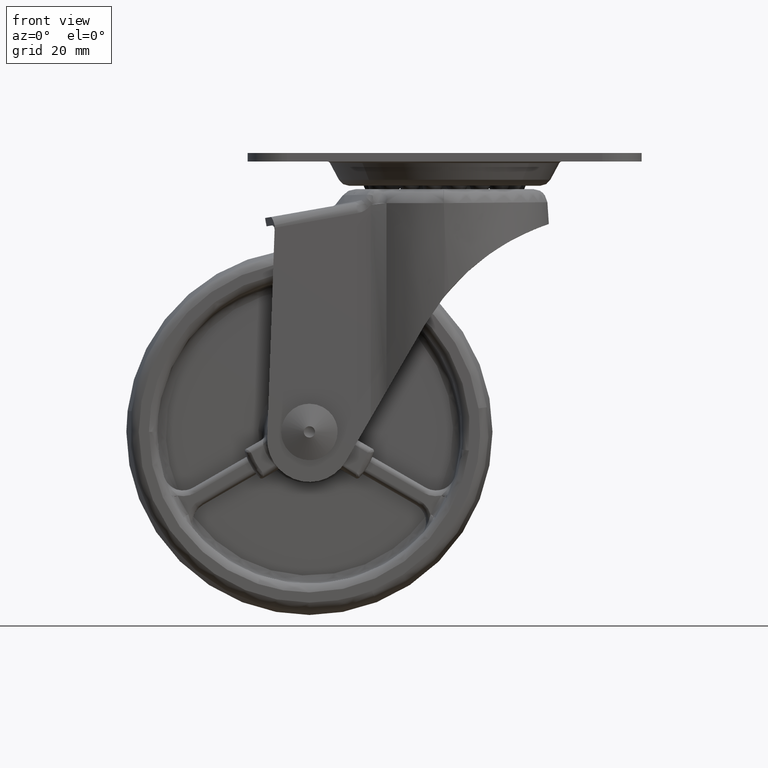
[diagram: clean part render]
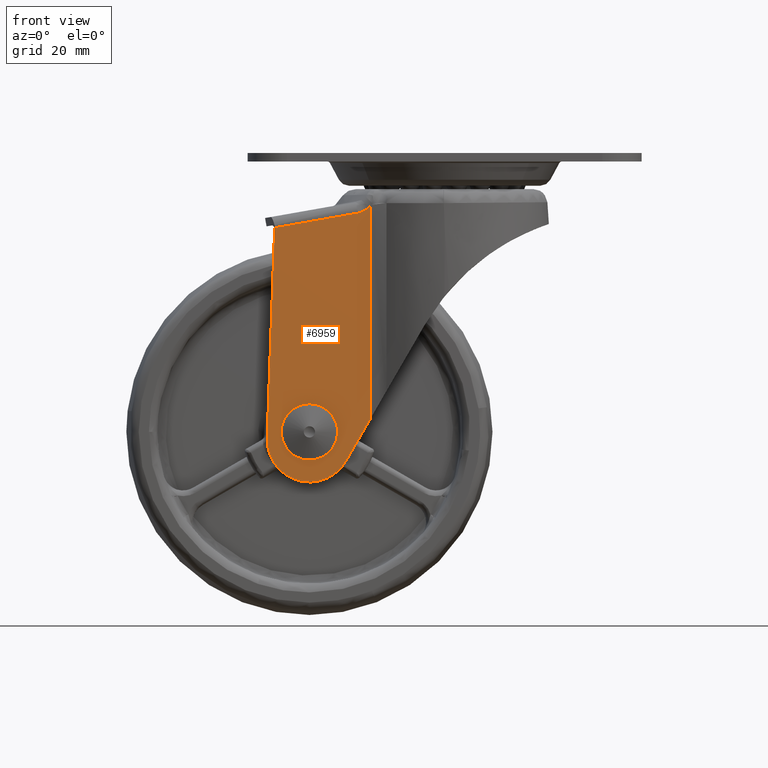
[diagram: same view with one face highlighted and labeled with its STEP entity id]
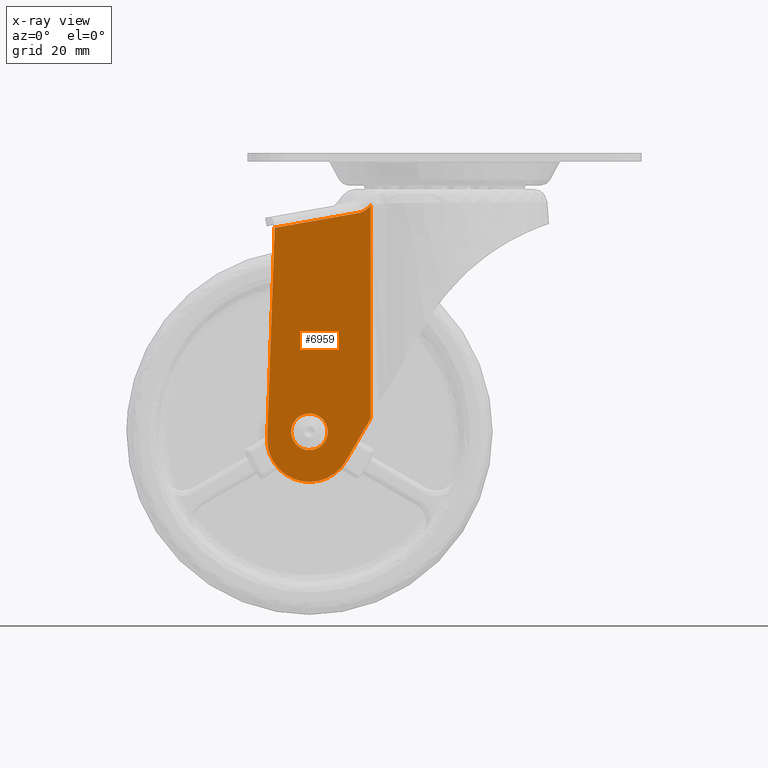
[diagram: x-ray of the same camera — body ghosted, the highlighted face saturated]
A machine part, front view. The second image highlights one B-rep face of the part: STEP entity #6959.
The next image is the same camera in x-ray: the body ghosted, the highlighted face saturated — about 0% of this face is hidden behind the body in this view.
In plain terms, the highlighted face is a freeform B-spline surface patch.
Its self-contained STEP definition (entity closure, byte-faithful):
#962=CARTESIAN_POINT('',(-26.481556285255721,-14.500014999999980,-50.098657888461673));
#963=VERTEX_POINT('',#962);
#969=CARTESIAN_POINT('',(-24.0,-14.500014999999980,-51.249996000000003));
#970=VERTEX_POINT('',#969);
#971=CARTESIAN_POINT('',(-26.481556285255721,-14.500014999999980,-50.098657888461673));
#972=CARTESIAN_POINT('',(-26.196994702160229,-14.500015000000010,-50.435937924643142));
#973=CARTESIAN_POINT('',(-25.641381200740629,-14.500014999999960,-50.870703685043850));
#974=CARTESIAN_POINT('',(-24.749986543510339,-14.500014999999980,-51.192000824857068));
#975=CARTESIAN_POINT('',(-24.250010752007100,-14.500014999999969,-51.250047392190893));
#976=CARTESIAN_POINT('',(-24.0,-14.500014999999980,-51.249996000000003));
#977=B_SPLINE_CURVE_WITH_KNOTS('',3,(#971,#972,#973,#974,#975,#976),.UNSPECIFIED.,.F.,.U.,(4,1,1,4),(0.000000054424649,1.323581554199689,2.073600947817505,2.823627261542827),.UNSPECIFIED.);
#978=EDGE_CURVE('',#963,#970,#977,.T.);
#980=CARTESIAN_POINT('',(-20.750000000000661,-14.500014999999980,-47.999993928805957));
#981=VERTEX_POINT('',#980);
#982=CARTESIAN_POINT('',(-24.0,-14.500014999999980,-51.249996000000003));
#983=CARTESIAN_POINT('',(-23.654320758988710,-14.500015000000010,-51.250179105467197));
#984=CARTESIAN_POINT('',(-23.096070554655778,-14.500014999999930,-51.160054004434500));
#985=CARTESIAN_POINT('',(-22.436602506146549,-14.500015000000030,-50.867636830171840));
#986=CARTESIAN_POINT('',(-21.948912348024301,-14.500014999999930,-50.541772903984423));
#987=CARTESIAN_POINT('',(-21.484482486210350,-14.500015000000079,-50.099670013342639));
#988=CARTESIAN_POINT('',(-21.052774071394051,-14.500014999999820,-49.453728094915192));
#989=CARTESIAN_POINT('',(-20.799715856046799,-14.500015000000220,-48.717896996056268));
#990=CARTESIAN_POINT('',(-20.749982138409969,-14.500014999999760,-48.212695492317003));
#991=CARTESIAN_POINT('',(-20.750000000000661,-14.500014999999980,-47.999993928805957));
#992=B_SPLINE_CURVE_WITH_KNOTS('',3,(#982,#983,#984,#985,#986,#987,#988,#989,#990,#991),.UNSPECIFIED.,.F.,.U.,(4,1,1,1,1,1,1,4),(0.000000086991321,1.036990391436234,1.675165644531917,2.153791850093249,2.791894891515630,3.589599017035031,4.467092726175537,5.105217336476702),.UNSPECIFIED.);
#993=EDGE_CURVE('',#970,#981,#992,.T.);
#995=CARTESIAN_POINT('',(-24.0,-14.500014999999980,-44.749996000000003));
#996=VERTEX_POINT('',#995);
#997=CARTESIAN_POINT('',(-20.750000000000661,-14.500014999999980,-47.999993928805957));
#998=CARTESIAN_POINT('',(-20.749648631418520,-14.500014999999980,-47.601095348844218));
#999=CARTESIAN_POINT('',(-20.854088096085800,-14.500014999999999,-47.042983797080190));
#1000=CARTESIAN_POINT('',(-21.184792626607109,-14.500014999999980,-46.344060126032232));
#1001=CARTESIAN_POINT('',(-21.523204617914200,-14.500014999999999,-45.863494637384839));
#1002=CARTESIAN_POINT('',(-22.026282380703240,-14.500014999999950,-45.384468469668278));
#1003=CARTESIAN_POINT('',(-22.600739912557621,-14.500015000000021,-45.040171777657363));
#1004=CARTESIAN_POINT('',(-23.282133407029679,-14.500014999999941,-44.805790072367401));
#1005=CARTESIAN_POINT('',(-23.734111078695520,-14.500014999999999,-44.749931105186512));
#1006=CARTESIAN_POINT('',(-24.0,-14.500014999999980,-44.749996000000003));
#1007=B_SPLINE_CURVE_WITH_KNOTS('',3,(#997,#998,#999,#1000,#1001,#1002,#1003,#1004,#1005,#1006),.UNSPECIFIED.,.F.,.U.,(4,1,1,1,1,1,1,4),(0.000000089837820,1.196534105289215,1.675164880495850,2.313321475636653,2.951424224352235,3.749141560874941,4.307545843119534,5.105215001699997),.UNSPECIFIED.);
#1008=EDGE_CURVE('',#981,#996,#1007,.T.);
#1010=CARTESIAN_POINT('',(-26.237152120853331,-14.500014999999980,-45.642529769683343));
#1011=VERTEX_POINT('',#1010);
#1012=CARTESIAN_POINT('',(-24.0,-14.500014999999980,-44.749996000000003));
#1013=CARTESIAN_POINT('',(-24.437013495394631,-14.500014999999980,-44.749520485583247));
#1014=CARTESIAN_POINT('',(-25.259059122995609,-14.500015000000010,-44.918541620766213));
#1015=CARTESIAN_POINT('',(-25.957656481172720,-14.500014999999980,-45.376914490278040));
#1016=CARTESIAN_POINT('',(-26.237152120853331,-14.500014999999980,-45.642529769683343));
#1017=B_SPLINE_CURVE_WITH_KNOTS('',3,(#1012,#1013,#1014,#1015,#1016),.UNSPECIFIED.,.F.,.U.,(4,1,4),(0.000000029991149,1.310863526457963,2.467517039208516),.UNSPECIFIED.);
#1018=EDGE_CURVE('',#996,#1011,#1017,.T.);
#1103=CARTESIAN_POINT('',(-27.249999999999339,-14.500014999999980,-47.999998071194071));
#1104=VERTEX_POINT('',#1103);
#1105=CARTESIAN_POINT('',(-26.237152120853331,-14.500014999999980,-45.642529769683343));
#1106=CARTESIAN_POINT('',(-26.416557923162319,-14.500014999999941,-45.812711349151520));
#1107=CARTESIAN_POINT('',(-26.718425794476008,-14.500015000000040,-46.173108157527963));
#1108=CARTESIAN_POINT('',(-27.128107216871570,-14.500014999999960,-46.956193301129723));
#1109=CARTESIAN_POINT('',(-27.250424579124221,-14.500014999999991,-47.587791752427179));
#1110=CARTESIAN_POINT('',(-27.249999999999339,-14.500014999999980,-47.999998071194071));
#1111=B_SPLINE_CURVE_WITH_KNOTS('',3,(#1105,#1106,#1107,#1108,#1109,#1110),.UNSPECIFIED.,.F.,.U.,(4,1,1,4),(0.000000023109390,0.741853529874064,1.401278265790185,2.637701220684230),.UNSPECIFIED.);
#1112=EDGE_CURVE('',#1011,#1104,#1111,.T.);
#1114=CARTESIAN_POINT('',(-27.249999999999339,-14.500014999999980,-47.999998071194071));
#1115=CARTESIAN_POINT('',(-27.250044582628771,-14.500015000000010,-48.261419812350802));
#1116=CARTESIAN_POINT('',(-27.183740862821590,-14.500014999999960,-48.808021637904012));
#1117=CARTESIAN_POINT('',(-26.904254970216261,-14.500014999999991,-49.522380708573444));
#1118=CARTESIAN_POINT('',(-26.619681789394900,-14.500014999999991,-49.935351416034337));
#1119=CARTESIAN_POINT('',(-26.481556285255721,-14.500014999999980,-50.098657888461673));
#1120=B_SPLINE_CURVE_WITH_KNOTS('',3,(#1114,#1115,#1116,#1117,#1118,#1119),.UNSPECIFIED.,.F.,.U.,(4,1,1,4),(0.000000032593959,0.784282507117011,1.639846312715046,2.281526548983720),.UNSPECIFIED.);
#1121=EDGE_CURVE('',#1104,#963,#1120,.T.);
#3517=CARTESIAN_POINT('',(-13.114845407450700,-14.500014999999960,-7.772795096158580));
#3518=VERTEX_POINT('',#3517);
#3562=CARTESIAN_POINT('',(-13.444378099346499,-14.500014999999960,-8.120697380075461));
#3563=VERTEX_POINT('',#3562);
#3574=CARTESIAN_POINT('',(-13.114845407450700,-14.500014999999960,-7.772795096158580));
#3575=CARTESIAN_POINT('',(-13.444378099346499,-14.500014999999960,-8.120697380075461));
#3576=QUASI_UNIFORM_CURVE('',1,(#3574,#3575),.UNSPECIFIED.,.F.,.U.);
#3577=EDGE_CURVE('',#3518,#3563,#3576,.T.);
#3648=CARTESIAN_POINT('',(-15.450099921824901,-14.500014999999960,-9.175366209909820));
#3649=VERTEX_POINT('',#3648);
#3662=CARTESIAN_POINT('',(-13.444378099346499,-14.500014999999960,-8.120697380075461));
#3663=CARTESIAN_POINT('',(-13.577538275318380,-14.500014999999960,-8.261655065153342));
#3664=CARTESIAN_POINT('',(-13.721810046413299,-14.500014999999960,-8.388276476710647));
#3665=CARTESIAN_POINT('',(-13.952577617743611,-14.500014999999960,-8.559681311292167));
#3666=CARTESIAN_POINT('',(-14.031920859921200,-14.500014999999960,-8.613693024904045));
#3667=CARTESIAN_POINT('',(-14.195333000298200,-14.500014999999960,-8.715619370966834));
#3668=CARTESIAN_POINT('',(-14.279730269917909,-14.500014999999960,-8.763682929964455));
#3669=CARTESIAN_POINT('',(-14.536187889577640,-14.500014999999960,-8.896791213018338));
#3670=CARTESIAN_POINT('',(-14.712199930313959,-14.500014999999960,-8.971436871829235));
#3671=CARTESIAN_POINT('',(-15.073813551437929,-14.500014999999960,-9.093914821171291));
#3672=CARTESIAN_POINT('',(-15.259416394751179,-14.500014999999960,-9.141743580428724));
#3673=CARTESIAN_POINT('',(-15.450099921824901,-14.500014999999960,-9.175366209909820));
#3674=B_SPLINE_CURVE_WITH_KNOTS('',3,(#3662,#3663,#3664,#3665,#3666,#3667,#3668,#3669,#3670,#3671,#3672,#3673),.UNSPECIFIED.,.F.,.U.,(4,2,2,2,2,4),(0.0,0.250000000000002,0.375000000000002,0.500000000000003,0.750000000000001,1.0),.UNSPECIFIED.);
#3675=EDGE_CURVE('',#3563,#3649,#3674,.T.);
#3706=CARTESIAN_POINT('',(-30.168149422949352,-14.500014999999999,-11.770554114201261));
#3707=VERTEX_POINT('',#3706);
#3715=CARTESIAN_POINT('',(-15.450099921824901,-14.500014999999960,-9.175366209909820));
#3716=CARTESIAN_POINT('',(-30.168149422949352,-14.500014999999999,-11.770554114201261));
#3717=QUASI_UNIFORM_CURVE('',1,(#3715,#3716),.UNSPECIFIED.,.F.,.U.);
#3718=EDGE_CURVE('',#3649,#3707,#3717,.T.);
#5665=CARTESIAN_POINT('',(-13.114845407450780,-14.500014999999960,-45.563707743062693));
#5666=VERTEX_POINT('',#5665);
#5667=CARTESIAN_POINT('',(-13.114845407450780,-14.500014999999960,-45.563707743062693));
#5668=CARTESIAN_POINT('',(-13.114845407450700,-14.500014999999960,-7.772795096158580));
#5669=QUASI_UNIFORM_CURVE('',1,(#5667,#5668),.UNSPECIFIED.,.F.,.U.);
#5670=EDGE_CURVE('',#5666,#3518,#5669,.T.);
#5866=CARTESIAN_POINT('',(-30.655919629697049,-14.500014999999999,-25.503042144820650));
#5867=VERTEX_POINT('',#5866);
#5875=CARTESIAN_POINT('',(-30.168149422949352,-14.500014999999999,-11.770554114201261));
#5876=CARTESIAN_POINT('',(-30.655919629697049,-14.500014999999999,-25.503042144820650));
#5877=QUASI_UNIFORM_CURVE('',1,(#5875,#5876),.UNSPECIFIED.,.F.,.U.);
#5878=EDGE_CURVE('',#3707,#5867,#5877,.T.);
#5890=CARTESIAN_POINT('',(-31.495273444506651,-14.500014999999980,-49.133772546533599));
#5891=VERTEX_POINT('',#5890);
#5897=CARTESIAN_POINT('',(-31.495273444506651,-14.500014999999980,-49.133772546533599));
#5898=CARTESIAN_POINT('',(-30.655919629697049,-14.500014999999999,-25.503042144820650));
#5899=QUASI_UNIFORM_CURVE('',1,(#5897,#5898),.UNSPECIFIED.,.F.,.U.);
#5900=EDGE_CURVE('',#5891,#5867,#5899,.T.);
#5924=CARTESIAN_POINT('',(-17.508530000000000,-14.500014999999980,-53.156421999999900));
#5925=VERTEX_POINT('',#5924);
#5931=CARTESIAN_POINT('',(-31.495273444506651,-14.500014999999980,-49.133772546533599));
#5932=CARTESIAN_POINT('',(-31.523250152066641,-14.500014999999960,-49.910413807350892));
#5933=CARTESIAN_POINT('',(-31.372085111865701,-14.500015000000010,-51.159673241217781));
#5934=CARTESIAN_POINT('',(-30.790746823709970,-14.500014999999930,-52.664300894700617));
#5935=CARTESIAN_POINT('',(-30.050096503749270,-14.500015000000101,-53.916043281946067));
#5936=CARTESIAN_POINT('',(-28.951978071310020,-14.500014999999870,-55.140251356311829));
#5937=CARTESIAN_POINT('',(-27.537006079827851,-14.500015000000049,-56.078786081005333));
#5938=CARTESIAN_POINT('',(-26.181601346833698,-14.500014999999900,-56.609438252613508));
#5939=CARTESIAN_POINT('',(-24.835631795904369,-14.500015000000340,-56.900207081992193));
#5940=CARTESIAN_POINT('',(-23.349879425201070,-14.500014999999120,-56.931506377115817));
#5941=CARTESIAN_POINT('',(-21.970667025709680,-14.500015000000960,-56.656732331782948));
#5942=CARTESIAN_POINT('',(-20.830051098019450,-14.500014999999459,-56.224279274806037));
#5943=CARTESIAN_POINT('',(-19.828019185288721,-14.500015000000330,-55.673983798208013));
#5944=CARTESIAN_POINT('',(-18.603100147096541,-14.500014999999751,-54.707559245182850));
#5945=CARTESIAN_POINT('',(-17.871532771611090,-14.500015000000060,-53.784389268571793));
#5946=CARTESIAN_POINT('',(-17.508530000000000,-14.500014999999980,-53.156421999999900));
#5947=B_SPLINE_CURVE_WITH_KNOTS('',3,(#5931,#5932,#5933,#5934,#5935,#5936,#5937,#5938,#5939,#5940,#5941,#5942,#5943,#5944,#5945,#5946),.UNSPECIFIED.,.F.,.U.,(4,1,1,1,1,1,1,1,1,1,1,1,1,4),(0.000000316553301,2.331290991980971,3.730102036415520,4.818053293722178,6.683139090883115,8.625873277902919,9.869308860794488,11.034891264205420,12.744487466949950,14.298728384839981,15.231271781032801,16.396950315309670,17.718007184462071,19.893896527020530),.UNSPECIFIED.);
#5948=EDGE_CURVE('',#5891,#5925,#5947,.T.);
#6932=CARTESIAN_POINT('',(-32.413375961875062,-14.500014999999960,-5.318934956101032));
#6933=CARTESIAN_POINT('',(-32.413375961875062,-14.500014999999960,-59.352987590404993));
#6934=CARTESIAN_POINT('',(-12.196742561414620,-14.500014999999960,-5.318934956101032));
#6935=CARTESIAN_POINT('',(-12.196742561414620,-14.500014999999960,-59.352987590404993));
#6936=B_SPLINE_SURFACE_WITH_KNOTS('',1,1,((#6932,#6934),(#6933,#6935)),.UNSPECIFIED.,.F.,.F.,.U.,(2,2),(2,2),(0.0,54.034052634303947),(0.0,20.216633400460449),.UNSPECIFIED.);
#6937=ORIENTED_EDGE('',*,*,#5670,.T.);
#6938=ORIENTED_EDGE('',*,*,#3577,.T.);
#6939=ORIENTED_EDGE('',*,*,#3675,.T.);
#6940=ORIENTED_EDGE('',*,*,#3718,.T.);
#6941=ORIENTED_EDGE('',*,*,#5878,.T.);
#6942=ORIENTED_EDGE('',*,*,#5900,.F.);
#6943=ORIENTED_EDGE('',*,*,#5948,.T.);
#6944=CARTESIAN_POINT('',(-13.114845407450780,-14.500014999999960,-45.563707743062693));
#6945=CARTESIAN_POINT('',(-17.508530000000000,-14.500014999999980,-53.156421999999900));
#6946=QUASI_UNIFORM_CURVE('',1,(#6944,#6945),.UNSPECIFIED.,.F.,.U.);
#6947=EDGE_CURVE('',#5666,#5925,#6946,.T.);
#6948=ORIENTED_EDGE('',*,*,#6947,.F.);
#6949=EDGE_LOOP('',(#6937,#6938,#6939,#6940,#6941,#6942,#6943,#6948));
#6950=FACE_OUTER_BOUND('',#6949,.T.);
#6951=ORIENTED_EDGE('',*,*,#993,.F.);
#6952=ORIENTED_EDGE('',*,*,#978,.F.);
#6953=ORIENTED_EDGE('',*,*,#1121,.F.);
#6954=ORIENTED_EDGE('',*,*,#1112,.F.);
#6955=ORIENTED_EDGE('',*,*,#1018,.F.);
#6956=ORIENTED_EDGE('',*,*,#1008,.F.);
#6957=EDGE_LOOP('',(#6951,#6952,#6953,#6954,#6955,#6956));
#6958=FACE_BOUND('',#6957,.T.);
#6959=ADVANCED_FACE('',(#6950,#6958),#6936,.T.);